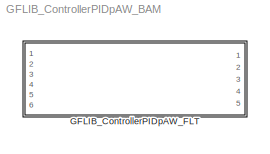
MODEL GFLIB_ControllerPIDpAW_BAM
KIND model
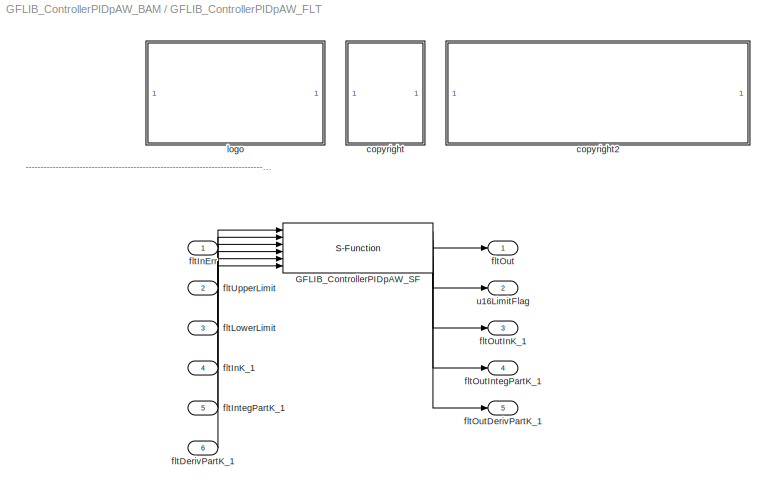
BLOCK [SubSystem] GFLIB_ControllerPIDpAW_FLT
  Ports = [6, 5]
  RequestExecContextInheritance = off
  SID = 1
BLOCK [S-Function] GFLIB_ControllerPIDpAW_FLT/GFLIB_ControllerPIDpAW_SF
  EnableBusSupport = off
  FunctionName = GFLIB_ControllerPIDpAW_SF_FLT
  Parameters = fltPropGain,fltIntegGain,fltDerivGain,fltFiltCoef
  Ports = [6, 5]
  SID = 4
BLOCK [SubSystem] GFLIB_ControllerPIDpAW_FLT/<copyright redacted>
  Ports = []
  RequestExecContextInheritance = off
  SID = 20
BLOCK [SubSystem] GFLIB_ControllerPIDpAW_FLT/copyright2
  Ports = []
  RequestExecContextInheritance = off
  SID = 23
BLOCK [Inport] GFLIB_ControllerPIDpAW_FLT/fltDerivPartK_1
  IconDisplay = Port number
  Port = 6
  SID = 10
BLOCK [Inport] GFLIB_ControllerPIDpAW_FLT/fltInErr
  IconDisplay = Port number
  SID = 5
BLOCK [Inport] GFLIB_ControllerPIDpAW_FLT/fltInK_1
  IconDisplay = Port number
  Port = 4
  SID = 8
BLOCK [Inport] GFLIB_ControllerPIDpAW_FLT/fltIntegPartK_1
  IconDisplay = Port number
  Port = 5
  SID = 9
BLOCK [Inport] GFLIB_ControllerPIDpAW_FLT/fltLowerLimit
  IconDisplay = Port number
  Port = 3
  SID = 7
BLOCK [Outport] GFLIB_ControllerPIDpAW_FLT/fltOut
  IconDisplay = Port number
  SID = 11
BLOCK [Outport] GFLIB_ControllerPIDpAW_FLT/fltOutDerivPartK_1
  IconDisplay = Port number
  Port = 5
  SID = 15
BLOCK [Outport] GFLIB_ControllerPIDpAW_FLT/fltOutInK_1
  IconDisplay = Port number
  Port = 3
  SID = 13
BLOCK [Outport] GFLIB_ControllerPIDpAW_FLT/fltOutIntegPartK_1
  IconDisplay = Port number
  Port = 4
  SID = 14
BLOCK [Inport] GFLIB_ControllerPIDpAW_FLT/fltUpperLimit
  IconDisplay = Port number
  Port = 2
  SID = 6
BLOCK [SubSystem] GFLIB_ControllerPIDpAW_FLT/logo
  Ports = []
  RequestExecContextInheritance = off
  SID = 16
BLOCK [Outport] GFLIB_ControllerPIDpAW_FLT/u16LimitFlag
  IconDisplay = Port number
  Port = 2
  SID = 12
ANNOTATION GFLIB_ControllerPIDpAW_FLT: ---------------------------------------------------------------------------------------------------------------------------------------------------------------------------------------------------
LINE GFLIB_ControllerPIDpAW_FLT/GFLIB_ControllerPIDpAW_SF:1 -> GFLIB_ControllerPIDpAW_FLT/fltOut:1
LINE GFLIB_ControllerPIDpAW_FLT/GFLIB_ControllerPIDpAW_SF:2 -> GFLIB_ControllerPIDpAW_FLT/u16LimitFlag:1
LINE GFLIB_ControllerPIDpAW_FLT/GFLIB_ControllerPIDpAW_SF:3 -> GFLIB_ControllerPIDpAW_FLT/fltOutInK_1:1
LINE GFLIB_ControllerPIDpAW_FLT/GFLIB_ControllerPIDpAW_SF:4 -> GFLIB_ControllerPIDpAW_FLT/fltOutIntegPartK_1:1
LINE GFLIB_ControllerPIDpAW_FLT/GFLIB_ControllerPIDpAW_SF:5 -> GFLIB_ControllerPIDpAW_FLT/fltOutDerivPartK_1:1
LINE GFLIB_ControllerPIDpAW_FLT/fltDerivPartK_1:1 -> GFLIB_ControllerPIDpAW_FLT/GFLIB_ControllerPIDpAW_SF:6
LINE GFLIB_ControllerPIDpAW_FLT/fltInErr:1 -> GFLIB_ControllerPIDpAW_FLT/GFLIB_ControllerPIDpAW_SF:1
LINE GFLIB_ControllerPIDpAW_FLT/fltInK_1:1 -> GFLIB_ControllerPIDpAW_FLT/GFLIB_ControllerPIDpAW_SF:4
LINE GFLIB_ControllerPIDpAW_FLT/fltIntegPartK_1:1 -> GFLIB_ControllerPIDpAW_FLT/GFLIB_ControllerPIDpAW_SF:5
LINE GFLIB_ControllerPIDpAW_FLT/fltLowerLimit:1 -> GFLIB_ControllerPIDpAW_FLT/GFLIB_ControllerPIDpAW_SF:3
LINE GFLIB_ControllerPIDpAW_FLT/fltUpperLimit:1 -> GFLIB_ControllerPIDpAW_FLT/GFLIB_ControllerPIDpAW_SF:2
